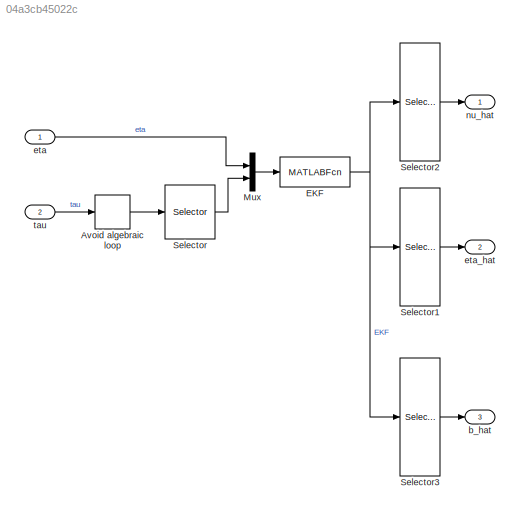
MODEL slx_04a3cb45022c
KIND model
CONFIG AbsTol = auto
CONFIG EnableMultiTasking = off
CONFIG FixedStep = auto
CONFIG InitFcn = clear EKF
CONFIG MaxStep = auto
CONFIG MinStep = auto
CONFIG RelTol = 1e-3
CONFIG SampleTimeConstraint = Unconstrained
CONFIG Solver = FixedStepAuto
CONFIG SolverName = FixedStepAuto
CONFIG StartTime = 0.0
CONFIG StopTime = 10.0
BLOCK [Delay] Avoid algebraic loop
  DelayLength = 1
  InputPortMap = u0
  Ports = [1, 1]
BLOCK [MATLABFcn] EKF
  MATLABFcn = EKF_func
  Output1D = off
  Ports = [1, 1]
BLOCK [Mux] Mux
  DisplayOption = bar
  Inputs = 2
  Ports = [2, 1]
BLOCK [Selector] Selector
  IndexOptions = Index vector (dialog)
  Indices = [1 2 6]
  InputPortWidth = 6
  OutputSizes = 1
  Ports = [1, 1]
BLOCK [Selector] Selector1
  IndexOptions = Index vector (dialog)
  Indices = [7:9]
  InputPortWidth = 15
  OutputSizes = 1
  Ports = [1, 1]
BLOCK [Selector] Selector2
  IndexOptions = Index vector (dialog)
  Indices = [13:15]
  InputPortWidth = 15
  OutputSizes = 1
  Ports = [1, 1]
BLOCK [Selector] Selector3
  IndexOptions = Index vector (dialog)
  Indices = [10:12]
  InputPortWidth = 15
  OutputSizes = 1
  Ports = [1, 1]
BLOCK [Outport] b_hat
  IconDisplay = Port number
  Port = 3
  PortDimensions = 3
  SampleTime = 0.1
BLOCK [Inport] eta
  IconDisplay = Port number
  PortDimensions = 3
  SampleTime = 0.1
BLOCK [Outport] eta_hat
  IconDisplay = Port number
  Port = 2
  PortDimensions = 3
  SampleTime = 0.1
BLOCK [Outport] nu_hat
  IconDisplay = Port number
  PortDimensions = 3
  SampleTime = 0.1
BLOCK [Inport] tau
  IconDisplay = Port number
  Port = 2
  PortDimensions = 6
  SampleTime = 0.1
LINE Avoid algebraic loop:1 -> Selector:1
NET EKF:1 -> Selector1:1, Selector2:1, Selector3:1
LINE Mux:1 -> EKF:1
LINE Selector1:1 -> eta_hat:1
LINE Selector2:1 -> nu_hat:1
LINE Selector3:1 -> b_hat:1
LINE Selector:1 -> Mux:2
LINE eta:1 -> Mux:1
LINE tau:1 -> Avoid algebraic loop:1
note: NET lines group one-source signal fan-out (src -> all destinations, sorted); 1:1 wires keep LINE
